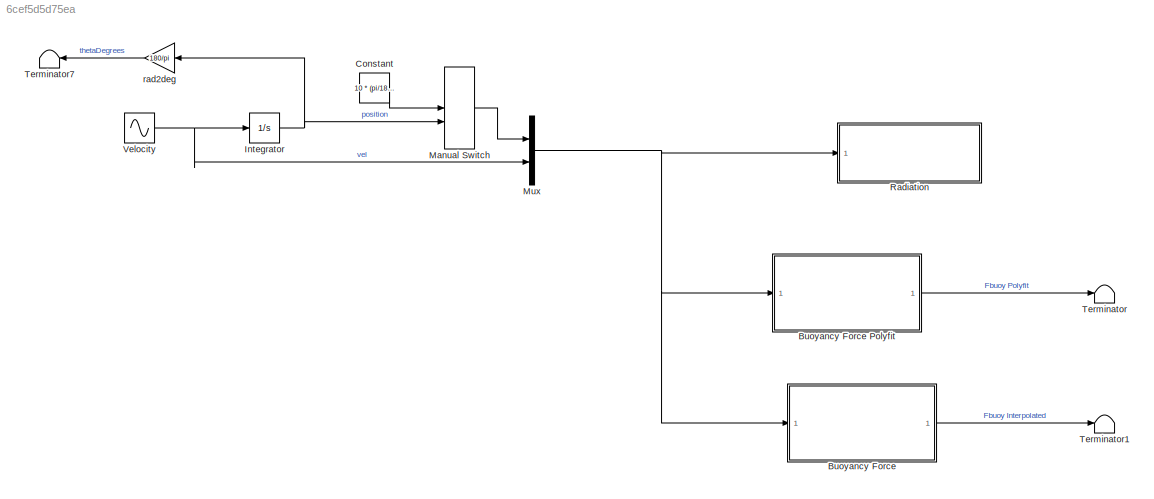
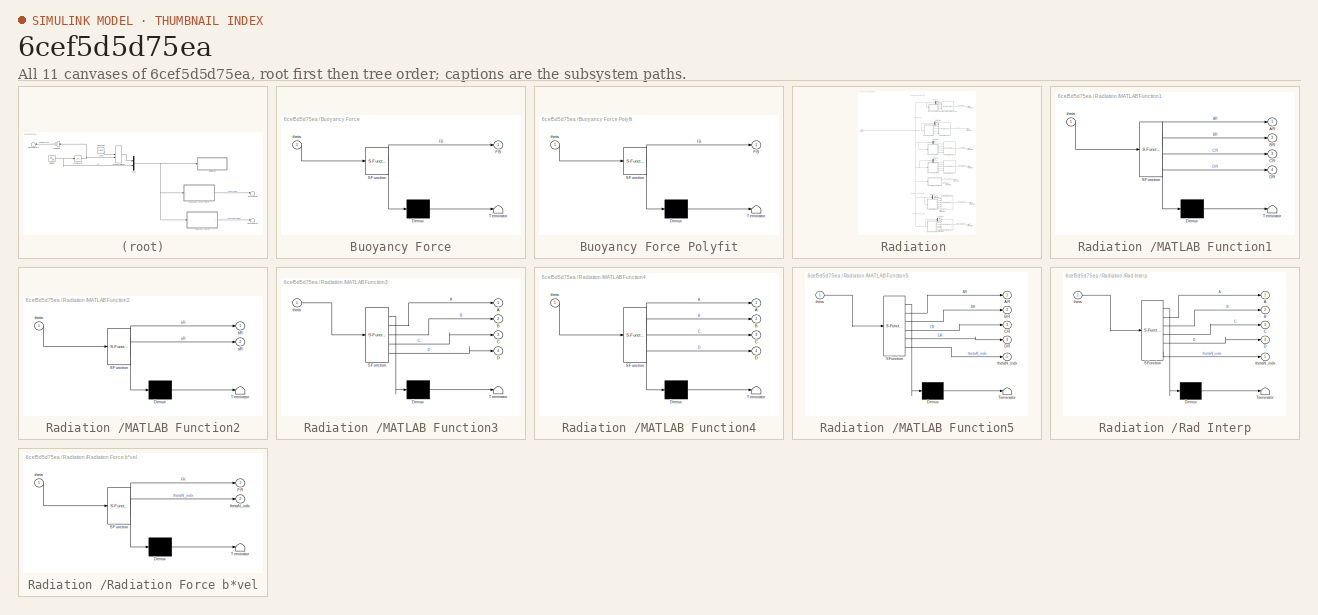
[diagram: thumbnail index - all 11 canvases of the model, root first then tree order]
MODEL slx_6cef5d5d75ea
KIND model
CONFIG AbsTol = auto
CONFIG EnableMultiTasking = off
CONFIG FixedStep = 0.01
CONFIG MaxStep = auto
CONFIG MinStep = auto
CONFIG RelTol = 1e-3
CONFIG SampleTimeConstraint = Unconstrained
CONFIG SolverName = ode3
CONFIG StartTime = 0.0
CONFIG StopTime = 50
BLOCK [SubSystem] Buoyancy Force
  ErrorFcn = Stateflow.Translate.translate
  PermitHierarchicalResolution = ExplicitOnly
  Ports = [1, 1]
  RequestExecContextInheritance = off
  SFBlockType = MATLAB Function
  TreatAsAtomicUnit = on
BLOCK [SubSystem] Buoyancy Force Polyfit
  ErrorFcn = Stateflow.Translate.translate
  PermitHierarchicalResolution = ExplicitOnly
  Ports = [1, 1]
  RequestExecContextInheritance = off
  SFBlockType = MATLAB Function
  TreatAsAtomicUnit = on
BLOCK [Demux] Buoyancy Force Polyfit/ Demux 
  Outputs = 1
  Ports = [1, 1]
BLOCK [S-Function] Buoyancy Force Polyfit/ SFunction 
  EnableBusSupport = on
  FunctionName = sf_sfun
  Parameters = hydroVCoeff
  PortCounts = [1 2]
  Ports = [1, 2]
  SFcnIsStateOwnerBlock = off
  SFunctionDeploymentMode = off
  Tag = Stateflow S-Function 8
BLOCK [Terminator] Buoyancy Force Polyfit/ Terminator 
BLOCK [Outport] Buoyancy Force Polyfit/FB
BLOCK [Inport] Buoyancy Force Polyfit/theta
BLOCK [Demux] Buoyancy Force/ Demux 
  Outputs = 1
  Ports = [1, 1]
BLOCK [S-Function] Buoyancy Force/ SFunction 
  EnableBusSupport = on
  FunctionName = sf_sfun
  Parameters = hydroCoeff,hydroVCoeff
  PortCounts = [1 2]
  Ports = [1, 2]
  SFcnIsStateOwnerBlock = off
  SFunctionDeploymentMode = off
  Tag = Stateflow S-Function 4
BLOCK [Terminator] Buoyancy Force/ Terminator 
BLOCK [Outport] Buoyancy Force/FB
BLOCK [Inport] Buoyancy Force/theta
BLOCK [Constant] Constant
  Value = 10 * (pi/180)
BLOCK [Integrator] Integrator
  InitialCondition = -1
  Ports = [1, 1]
BLOCK [ManualSwitch] Manual Switch
  CurrentSetting = 0
BLOCK [Mux] Mux
  DisplayOption = bar
  Inputs = 2
  Ports = [2, 1]
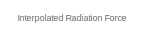
[diagram: Radiation  - part 1/3, top center region]
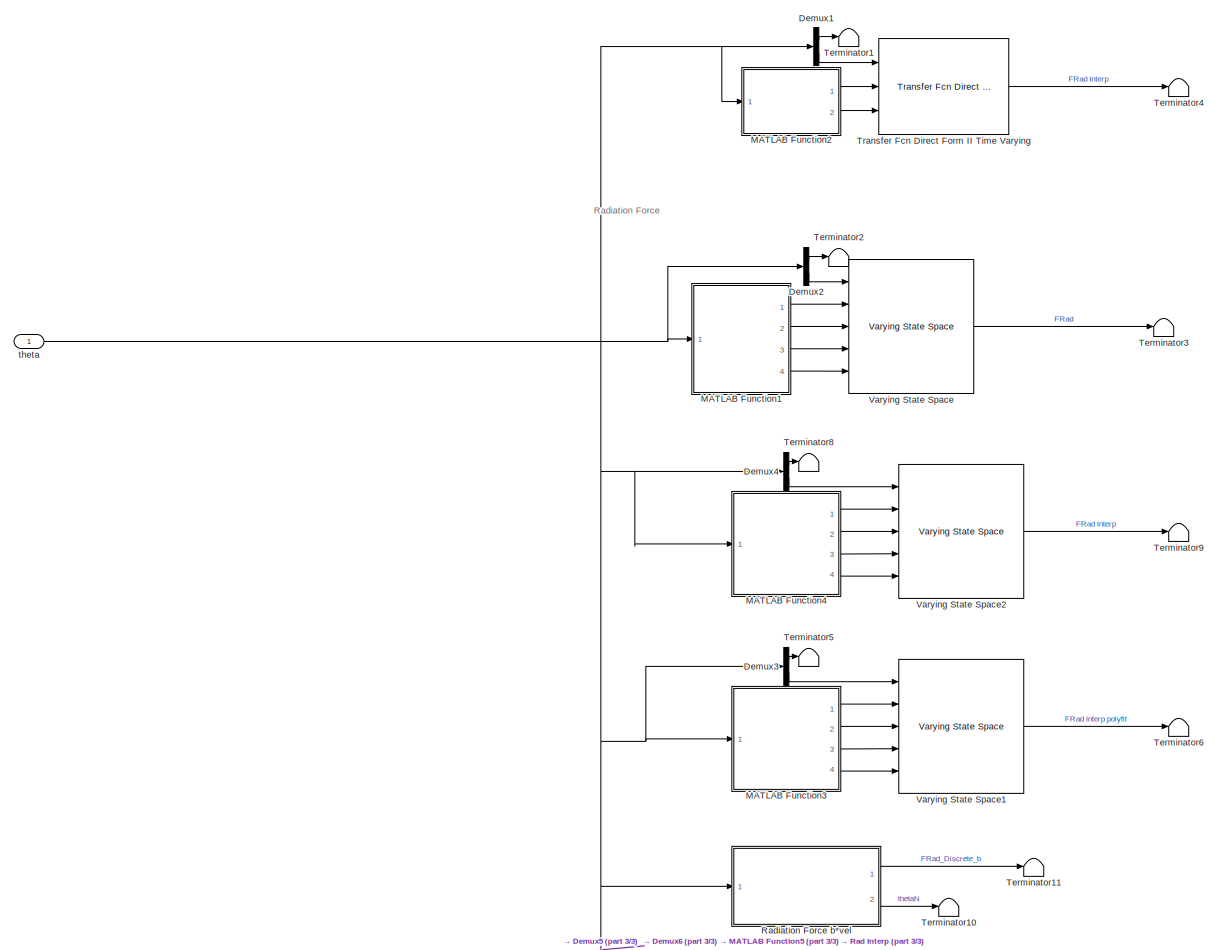
[diagram: Radiation  - part 2/3, full width, middle band]
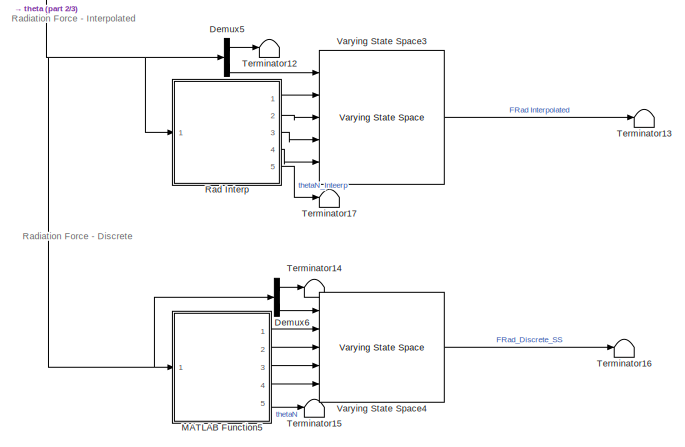
[diagram: Radiation  - part 3/3, bottom right region]
BLOCK [SubSystem] Radiation 
  Commented = on
  Ports = [1]
  RequestExecContextInheritance = off
BLOCK [Demux] Radiation /Demux1
  Commented = on
  Outputs = 2
  Ports = [1, 2]
BLOCK [Demux] Radiation /Demux2
  Outputs = 2
  Ports = [1, 2]
BLOCK [Demux] Radiation /Demux3
  Commented = on
  Outputs = 2
  Ports = [1, 2]
BLOCK [Demux] Radiation /Demux4
  Commented = on
  Outputs = 2
  Ports = [1, 2]
BLOCK [Demux] Radiation /Demux5
  Outputs = 2
  Ports = [1, 2]
BLOCK [Demux] Radiation /Demux6
  Outputs = 2
  Ports = [1, 2]
BLOCK [SubSystem] Radiation /MATLAB Function1
  ErrorFcn = Stateflow.Translate.translate
  PermitHierarchicalResolution = ExplicitOnly
  Ports = [1, 4]
  RequestExecContextInheritance = off
  SFBlockType = MATLAB Function
  TreatAsAtomicUnit = on
BLOCK [Demux] Radiation /MATLAB Function1/ Demux 
  Outputs = 1
  Ports = [1, 1]
BLOCK [S-Function] Radiation /MATLAB Function1/ SFunction 
  EnableBusSupport = on
  FunctionName = sf_sfun
  Parameters = hydroCoeff,tfRadAR_ROm,tfRadBR_ROm,tfRadCR_ROm,tfRadDR_ROm
  PortCounts = [1 5]
  Ports = [1, 5]
  SFcnIsStateOwnerBlock = off
  SFunctionDeploymentMode = off
  Tag = Stateflow S-Function 12
BLOCK [Terminator] Radiation /MATLAB Function1/ Terminator 
BLOCK [Outport] Radiation /MATLAB Function1/AR
BLOCK [Outport] Radiation /MATLAB Function1/BR
  Port = 2
BLOCK [Outport] Radiation /MATLAB Function1/CR
  Port = 3
BLOCK [Outport] Radiation /MATLAB Function1/DR
  Port = 4
BLOCK [Inport] Radiation /MATLAB Function1/theta
BLOCK [SubSystem] Radiation /MATLAB Function2
  Commented = on
  ErrorFcn = Stateflow.Translate.translate
  PermitHierarchicalResolution = ExplicitOnly
  Ports = [1, 2]
  RequestExecContextInheritance = off
  SFBlockType = MATLAB Function
  TreatAsAtomicUnit = on
BLOCK [Demux] Radiation /MATLAB Function2/ Demux 
  Outputs = 1
  Ports = [1, 1]
BLOCK [S-Function] Radiation /MATLAB Function2/ SFunction 
  EnableBusSupport = on
  FunctionName = sf_sfun
  Parameters = hydroVCoeff
  PortCounts = [1 3]
  Ports = [1, 3]
  SFcnIsStateOwnerBlock = off
  SFunctionDeploymentMode = off
  Tag = Stateflow S-Function 3
BLOCK [Terminator] Radiation /MATLAB Function2/ Terminator 
BLOCK [Outport] Radiation /MATLAB Function2/aR
  Port = 2
BLOCK [Outport] Radiation /MATLAB Function2/bR
BLOCK [Inport] Radiation /MATLAB Function2/theta
BLOCK [SubSystem] Radiation /MATLAB Function3
  Commented = on
  ErrorFcn = Stateflow.Translate.translate
  PermitHierarchicalResolution = ExplicitOnly
  Ports = [1, 4]
  RequestExecContextInheritance = off
  SFBlockType = MATLAB Function
  TreatAsAtomicUnit = on
BLOCK [Demux] Radiation /MATLAB Function3/ Demux 
  Outputs = 1
  Ports = [1, 1]
BLOCK [S-Function] Radiation /MATLAB Function3/ SFunction 
  EnableBusSupport = on
  FunctionName = sf_sfun
  Parameters = hydroVCoeff
  PortCounts = [1 5]
  Ports = [1, 5]
  SFcnIsStateOwnerBlock = off
  SFunctionDeploymentMode = off
  Tag = Stateflow S-Function 1
BLOCK [Terminator] Radiation /MATLAB Function3/ Terminator 
BLOCK [Outport] Radiation /MATLAB Function3/A
BLOCK [Outport] Radiation /MATLAB Function3/B
  Port = 2
BLOCK [Outport] Radiation /MATLAB Function3/C
  Port = 3
BLOCK [Outport] Radiation /MATLAB Function3/D
  Port = 4
BLOCK [Inport] Radiation /MATLAB Function3/theta
BLOCK [SubSystem] Radiation /MATLAB Function4
  Commented = on
  ErrorFcn = Stateflow.Translate.translate
  PermitHierarchicalResolution = ExplicitOnly
  Ports = [1, 4]
  RequestExecContextInheritance = off
  SFBlockType = MATLAB Function
  TreatAsAtomicUnit = on
BLOCK [Demux] Radiation /MATLAB Function4/ Demux 
  Outputs = 1
  Ports = [1, 1]
BLOCK [S-Function] Radiation /MATLAB Function4/ SFunction 
  EnableBusSupport = on
  FunctionName = sf_sfun
  Parameters = aRInterp,bRInterp,hydroCoeff
  PortCounts = [1 5]
  Ports = [1, 5]
  SFcnIsStateOwnerBlock = off
  SFunctionDeploymentMode = off
  Tag = Stateflow S-Function 2
BLOCK [Terminator] Radiation /MATLAB Function4/ Terminator 
BLOCK [Outport] Radiation /MATLAB Function4/A
BLOCK [Outport] Radiation /MATLAB Function4/B
  Port = 2
BLOCK [Outport] Radiation /MATLAB Function4/C
  Port = 3
BLOCK [Outport] Radiation /MATLAB Function4/D
  Port = 4
BLOCK [Inport] Radiation /MATLAB Function4/theta
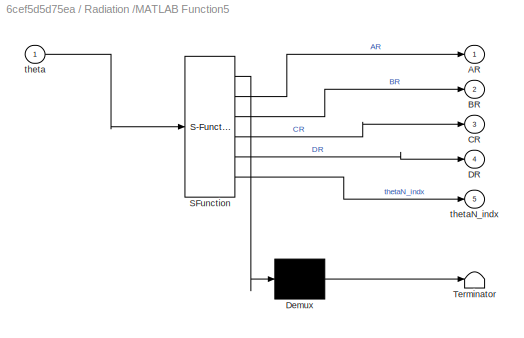
BLOCK [SubSystem] Radiation /MATLAB Function5
  ErrorFcn = Stateflow.Translate.translate
  PermitHierarchicalResolution = ExplicitOnly
  Ports = [1, 5]
  RequestExecContextInheritance = off
  SFBlockType = MATLAB Function
  TreatAsAtomicUnit = on
BLOCK [Demux] Radiation /MATLAB Function5/ Demux 
  Outputs = 1
  Ports = [1, 1]
BLOCK [S-Function] Radiation /MATLAB Function5/ SFunction 
  EnableBusSupport = on
  FunctionName = sf_sfun
  Parameters = hydroCoeff,tfRadAR_ROm,tfRadBR_ROm,tfRadCR_ROm,tfRadDR_ROm
  PortCounts = [1 6]
  Ports = [1, 6]
  SFcnIsStateOwnerBlock = off
  SFunctionDeploymentMode = off
  Tag = Stateflow S-Function 14
BLOCK [Terminator] Radiation /MATLAB Function5/ Terminator 
BLOCK [Outport] Radiation /MATLAB Function5/AR
BLOCK [Outport] Radiation /MATLAB Function5/BR
  Port = 2
BLOCK [Outport] Radiation /MATLAB Function5/CR
  Port = 3
BLOCK [Outport] Radiation /MATLAB Function5/DR
  Port = 4
BLOCK [Inport] Radiation /MATLAB Function5/theta
BLOCK [Outport] Radiation /MATLAB Function5/thetaN_indx
  Port = 5
BLOCK [SubSystem] Radiation /Rad Interp
  ErrorFcn = Stateflow.Translate.translate
  PermitHierarchicalResolution = ExplicitOnly
  Ports = [1, 5]
  RequestExecContextInheritance = off
  SFBlockType = MATLAB Function
  TreatAsAtomicUnit = on
BLOCK [Demux] Radiation /Rad Interp/ Demux 
  Outputs = 1
  Ports = [1, 1]
BLOCK [S-Function] Radiation /Rad Interp/ SFunction 
  EnableBusSupport = on
  FunctionName = sf_sfun
  Parameters = aRInterp,bRInterp,hydroCoeff
  PortCounts = [1 6]
  Ports = [1, 6]
  SFcnIsStateOwnerBlock = off
  SFunctionDeploymentMode = off
  Tag = Stateflow S-Function 6
BLOCK [Terminator] Radiation /Rad Interp/ Terminator 
BLOCK [Outport] Radiation /Rad Interp/A
BLOCK [Outport] Radiation /Rad Interp/B
  Port = 2
BLOCK [Outport] Radiation /Rad Interp/C
  Port = 3
BLOCK [Outport] Radiation /Rad Interp/D
  Port = 4
BLOCK [Inport] Radiation /Rad Interp/theta
BLOCK [Outport] Radiation /Rad Interp/thetaN_indx
  Port = 5
BLOCK [SubSystem] Radiation /Radiation Force b*vel
  Commented = on
  ErrorFcn = Stateflow.Translate.translate
  PermitHierarchicalResolution = ExplicitOnly
  Ports = [1, 2]
  RequestExecContextInheritance = off
  SFBlockType = MATLAB Function
  TreatAsAtomicUnit = on
BLOCK [Demux] Radiation /Radiation Force b*vel/ Demux 
  Outputs = 1
  Ports = [1, 1]
BLOCK [S-Function] Radiation /Radiation Force b*vel/ SFunction 
  EnableBusSupport = on
  FunctionName = sf_sfun
  Parameters = hydroCoeff,hydroVCoeff,w_WaveIndx
  PortCounts = [1 3]
  Ports = [1, 3]
  SFcnIsStateOwnerBlock = off
  SFunctionDeploymentMode = off
  Tag = Stateflow S-Function 16
BLOCK [Terminator] Radiation /Radiation Force b*vel/ Terminator 
BLOCK [Outport] Radiation /Radiation Force b*vel/FR
BLOCK [Inport] Radiation /Radiation Force b*vel/theta
BLOCK [Outport] Radiation /Radiation Force b*vel/thetaN_indx
  Port = 2
BLOCK [Terminator] Radiation /Terminator1
  Commented = on
BLOCK [Terminator] Radiation /Terminator10
  Commented = on
BLOCK [Terminator] Radiation /Terminator11
  Commented = on
BLOCK [Terminator] Radiation /Terminator12
BLOCK [Terminator] Radiation /Terminator13
BLOCK [Terminator] Radiation /Terminator14
BLOCK [Terminator] Radiation /Terminator15
BLOCK [Terminator] Radiation /Terminator16
BLOCK [Terminator] Radiation /Terminator17
BLOCK [Terminator] Radiation /Terminator2
BLOCK [Terminator] Radiation /Terminator3
BLOCK [Terminator] Radiation /Terminator4
  Commented = on
BLOCK [Terminator] Radiation /Terminator5
  Commented = on
BLOCK [Terminator] Radiation /Terminator6
  Commented = on
BLOCK [Terminator] Radiation /Terminator8
  Commented = on
BLOCK [Terminator] Radiation /Terminator9
  Commented = on
BLOCK [Reference] Radiation /Transfer Fcn Direct Form II Time Varying  REF=simulink/Additional Math
& Discrete/Additional
Discrete/Transfer Fcn
Direct Form II
Time Varying
  Commented = on
  Ports = [3, 1]
  SourceBlock = simulink/Additional Math\n& Discrete/Additional\nDiscrete/Transfer Fcn\nDirect Form II\nTime Varying
  SourceProductBaseCode = SL
  SourceType = Transfer Fcn Direct Form II Time Varying
BLOCK [Reference] Radiation /Varying State Space  REF=cstblocks/Linear Parameter Varying/Varying State Space
  Ports = [5, 1]
  SourceBlock = cstblocks/Linear Parameter Varying/Varying State Space
  SourceProductBaseCode = CT
  SourceType = Varying State Space
BLOCK [Reference] Radiation /Varying State Space1  REF=cstblocks/Linear Parameter Varying/Varying State Space
  Commented = on
  Ports = [5, 1]
  SourceBlock = cstblocks/Linear Parameter Varying/Varying State Space
  SourceProductBaseCode = CT
  SourceType = Varying State Space
BLOCK [Reference] Radiation /Varying State Space2  REF=cstblocks/Linear Parameter Varying/Varying State Space
  Commented = on
  Ports = [5, 1]
  SourceBlock = cstblocks/Linear Parameter Varying/Varying State Space
  SourceProductBaseCode = CT
  SourceType = Varying State Space
BLOCK [Reference] Radiation /Varying State Space3  REF=cstblocks/Linear Parameter Varying/Varying State Space
  Ports = [5, 1]
  SourceBlock = cstblocks/Linear Parameter Varying/Varying State Space
  SourceProductBaseCode = CT
  SourceType = Varying State Space
BLOCK [Reference] Radiation /Varying State Space4  REF=cstblocks/Linear Parameter Varying/Varying State Space
  Ports = [5, 1]
  SourceBlock = cstblocks/Linear Parameter Varying/Varying State Space
  SourceProductBaseCode = CT
  SourceType = Varying State Space
BLOCK [Inport] Radiation /theta
BLOCK [Terminator] Terminator
BLOCK [Terminator] Terminator1
BLOCK [Terminator] Terminator7
  NameLocation = top
BLOCK [Sin] Velocity
  Amplitude = 0.5
  Frequency = 0.5
  Ports = [0, 1]
  SampleTime = 0
BLOCK [Gain] rad2deg
  Gain = 180/pi
  NameLocation = top
ANNOTATION Radiation : Interpolated Radiation Force
ANNOTATION Radiation : Radiation Force
ANNOTATION Radiation : Radiation Force - Discrete
ANNOTATION Radiation : Radiation Force - Interpolated
LINE Buoyancy Force Polyfit:1 -> Terminator:1
LINE Buoyancy Force:1 -> Terminator1:1
LINE Constant:1 -> Manual Switch:1
NET Integrator:1 -> Manual Switch:2, rad2deg:1
LINE Manual Switch:1 -> Mux:1
NET Mux:1 -> Buoyancy Force Polyfit:1, Buoyancy Force:1, Radiation :1
LINE Radiation /Demux1:1 -> Radiation /Terminator1:1
LINE Radiation /Demux1:2 -> Radiation /Transfer Fcn Direct Form II Time Varying:1
LINE Radiation /Demux2:1 -> Radiation /Terminator2:1
LINE Radiation /Demux2:2 -> Radiation /Varying State Space:1
LINE Radiation /Demux3:1 -> Radiation /Terminator5:1
LINE Radiation /Demux3:2 -> Radiation /Varying State Space1:1
LINE Radiation /Demux4:1 -> Radiation /Terminator8:1
LINE Radiation /Demux4:2 -> Radiation /Varying State Space2:1
LINE Radiation /Demux5:1 -> Radiation /Terminator12:1
LINE Radiation /Demux5:2 -> Radiation /Varying State Space3:1
LINE Radiation /Demux6:1 -> Radiation /Terminator14:1
LINE Radiation /Demux6:2 -> Radiation /Varying State Space4:1
LINE Radiation /MATLAB Function1:1 -> Radiation /Varying State Space:2
LINE Radiation /MATLAB Function1:2 -> Radiation /Varying State Space:3
LINE Radiation /MATLAB Function1:3 -> Radiation /Varying State Space:4
LINE Radiation /MATLAB Function1:4 -> Radiation /Varying State Space:5
LINE Radiation /MATLAB Function2:1 -> Radiation /Transfer Fcn Direct Form II Time Varying:2
LINE Radiation /MATLAB Function2:2 -> Radiation /Transfer Fcn Direct Form II Time Varying:3
LINE Radiation /MATLAB Function3:1 -> Radiation /Varying State Space1:2
LINE Radiation /MATLAB Function3:2 -> Radiation /Varying State Space1:3
LINE Radiation /MATLAB Function3:3 -> Radiation /Varying State Space1:4
LINE Radiation /MATLAB Function3:4 -> Radiation /Varying State Space1:5
LINE Radiation /MATLAB Function4:1 -> Radiation /Varying State Space2:2
LINE Radiation /MATLAB Function4:2 -> Radiation /Varying State Space2:3
LINE Radiation /MATLAB Function4:3 -> Radiation /Varying State Space2:4
LINE Radiation /MATLAB Function4:4 -> Radiation /Varying State Space2:5
LINE Radiation /MATLAB Function5:1 -> Radiation /Varying State Space4:2
LINE Radiation /MATLAB Function5:2 -> Radiation /Varying State Space4:3
LINE Radiation /MATLAB Function5:3 -> Radiation /Varying State Space4:4
LINE Radiation /MATLAB Function5:4 -> Radiation /Varying State Space4:5
LINE Radiation /MATLAB Function5:5 -> Radiation /Terminator15:1
LINE Radiation /Rad Interp:1 -> Radiation /Varying State Space3:2
LINE Radiation /Rad Interp:2 -> Radiation /Varying State Space3:3
LINE Radiation /Rad Interp:3 -> Radiation /Varying State Space3:4
LINE Radiation /Rad Interp:4 -> Radiation /Varying State Space3:5
LINE Radiation /Rad Interp:5 -> Radiation /Terminator17:1
LINE Radiation /Radiation Force b*vel:1 -> Radiation /Terminator11:1
LINE Radiation /Radiation Force b*vel:2 -> Radiation /Terminator10:1
LINE Radiation /Transfer Fcn Direct Form II Time Varying:1 -> Radiation /Terminator4:1
LINE Radiation /Varying State Space1:1 -> Radiation /Terminator6:1
LINE Radiation /Varying State Space2:1 -> Radiation /Terminator9:1
LINE Radiation /Varying State Space3:1 -> Radiation /Terminator13:1
LINE Radiation /Varying State Space4:1 -> Radiation /Terminator16:1
LINE Radiation /Varying State Space:1 -> Radiation /Terminator3:1
NET Radiation /theta:1 -> Radiation /Demux1:1, Radiation /Demux2:1, Radiation /Demux3:1, Radiation /Demux4:1, Radiation /Demux5:1, Radiation /Demux6:1, Radiation /MATLAB Function1:1, Radiation /MATLAB Function2:1, Radiation /MATLAB Function3:1, Radiation /MATLAB Function4:1, Radiation /MATLAB Function5:1, Radiation /Rad Interp:1, Radiation /Radiation Force b*vel:1
NET Velocity:1 -> Integrator:1, Mux:2
LINE rad2deg:1 -> Terminator7:1
note: NET lines group one-source signal fan-out (src -> all destinations, sorted); 1:1 wires keep LINE
CHART Radiation /MATLAB Function5 states=1 transitions=1
  STATE_LABEL 'eML_blk_kernel()'
  STATE_LABEL 'SCRIPT:\nfunction [AR, BR, CR, DR, thetaN_indx] = RadTFCoeffs(theta,hydroCoeff, tfRadAR_ROm, tfRadBR_ROm, tfRadCR_ROm, tfRadDR_ROm)\n% This function extracts the coefficients of the Radiation Transfer\n% Function based on discrete thetas. \n\n% Inputs: \n% theta0      = current states condition\n% hydrovCoeff = time-variable hydrodynamic coefficients\n% thetaN      = pitch angle index\n\n% Outputs: \n% bR   ...<+780ch>'
CHART Radiation /Radiation Force b*vel states=1 transitions=1
  STATE_LABEL 'eML_blk_kernel()'
  STATE_LABEL 'SCRIPT:\nfunction [FR, thetaN_indx] = fRad(theta,hydroCoeff, hydroVCoeff,w_WaveIndx)\n\n% States: \ntheta1  = theta(1); % (1) theta:  pitch angle response\ntheta2  = theta(2); % (2) thetaD: pitch angle velocity\n\n% Find the index for the discretized theta \n\ntheta1N = wrapToPi(theta1); \n\nif abs(rad2deg(theta1N)) >= 95 \n    theta1N = pi - abs(theta1N);\nend \n\n\nthetaN = find(deg2rad(hydroCoeff.theta) > abs(...<+213ch>'
CHART Radiation /MATLAB Function3 states=1 transitions=1
  STATE_LABEL 'eML_blk_kernel()'
  STATE_LABEL 'SCRIPT:\nfunction [A,B,C,D] = RadTFCoeffs(theta, hydroVCoeff)\n% This function extracts the coefficients of the Radiation Transfer\n% Function based on previously fitted data between discretized thetas. \n\n% Inputs: \n% theta0      = current states condition\n% hydrovCoeff = time-variable hydrodynamic coefficients\n% thetaN      = pitch angle index\n\n% Outputs: \n% bR    = numerator \n% aR    = denominator ...<+1703ch>'
CHART Radiation /MATLAB Function4 states=1 transitions=1
  STATE_LABEL 'eML_blk_kernel()'
  STATE_LABEL 'SCRIPT:\nfunction [A,B,C,D] = RadTFCoeffs(theta, hydroCoeff, aRInterp, bRInterp)\n% This function extracts the coefficients of the Radiation Transfer\n% Function based on previously fitted data between discretized thetas. \n\n% Inputs: \n% theta0      = current states condition\n% hydrovCoeff = time-variable hydrodynamic coefficients\n% thetaN      = pitch angle index\n\n% Outputs: \n% bR    = numerator \n% a...<+758ch>'
CHART Radiation /MATLAB Function2 states=1 transitions=1
  STATE_LABEL 'eML_blk_kernel()'
  STATE_LABEL 'SCRIPT:\nfunction [bR, aR] = RadTFCoeffs(theta, hydroVCoeff)\n% This function extracts the coefficients of the Radiation Transfer\n% Function based on previously fitted data between discretized thetas. \n\n% Inputs: \n% theta0      = current states condition\n% hydrovCoeff = time-variable hydrodynamic coefficients\n% thetaN      = pitch angle index\n\n% Outputs: \n% bR    = numerator \n% aR    = denominator \n...<+1493ch>'
CHART Buoyancy Force states=1 transitions=1
  STATE_LABEL 'eML_blk_kernel()'
  STATE_LABEL 'SCRIPT:\nfunction FB = fBuoy(theta,hydroCoeff, hydroVCoeff)\n\n% States: \ntheta1  = theta(1); % (1) theta:  pitch angle response\n% theta2  = theta(2); % (2) thetaD: pitch angle velocity\n\n% Find the index for the discretized theta \ntheta1N = wrapToPi(theta1); \n\nif abs(rad2deg(theta1N)) >= 95 \n    theta1N = pi - abs(theta1N);\nend \n\nthetaN = find(deg2rad(hydroCoeff.fineTheta) > abs(theta1N),1); \n\n\n%% In...<+167ch>'
CHART Radiation /Rad Interp states=1 transitions=1
  STATE_LABEL 'eML_blk_kernel()'
  STATE_LABEL 'SCRIPT:\nfunction [A,B,C,D,thetaN_indx] = RadTFCoeffs(theta, hydroCoeff, aRInterp, bRInterp)\n% This function extracts the coefficients of the Radiation Transfer\n% Function based on previously fitted data between discretized thetas. \n\n% Inputs: \n% theta0      = current states condition\n% hydrovCoeff = time-variable hydrodynamic coefficients\n% thetaN      = pitch angle index\n\n% Outputs: \n% bR    = nu...<+812ch>'
CHART Buoyancy Force Polyfit states=1 transitions=1
  STATE_LABEL 'eML_blk_kernel()'
  STATE_LABEL 'SCRIPT:\nfunction FB = fBuoy(theta, hydroVCoeff)\n\n% States: \ntheta1  = theta(1); % (1) theta:  pitch angle response\n% theta2  = theta(2); % (2) thetaD: pitch angle velocity\n\ntheta1 = wrapToPi(theta1); \ntheta1D = rad2deg(theta1); \n% Find the index for the discretized theta \nif abs(theta1D) >= 95\n    theta1D = 180 - abs(theta1D);\nend \n\nc  = zeros(1,1); \nc  = polyval(hydroVCoeff.cFit, abs(theta1D),[],...<+147ch>'
CHART Radiation /MATLAB Function1 states=1 transitions=1
  STATE_LABEL 'eML_blk_kernel()'
  STATE_LABEL 'SCRIPT:\nfunction [AR, BR, CR, DR] = RadTFCoeffs(theta,hydroCoeff, tfRadAR_ROm, tfRadBR_ROm, tfRadCR_ROm, tfRadDR_ROm)\n% This function extracts the coefficients of the Radiation Transfer\n% Function based on previously fitted data between discretized thetas. \n\n% Inputs: \n% theta0      = current states condition\n% hydrovCoeff = time-variable hydrodynamic coefficients\n% thetaN      = pitch angle index...<+783ch>'
CHART  states=0 transitions=0
CHART  states=0 transitions=0
CHART  states=0 transitions=0
CHART  states=0 transitions=0
CHART  states=0 transitions=0
CHART  states=0 transitions=0
CHART  states=0 transitions=0
CHART  states=0 transitions=0
CHART  states=0 transitions=0
